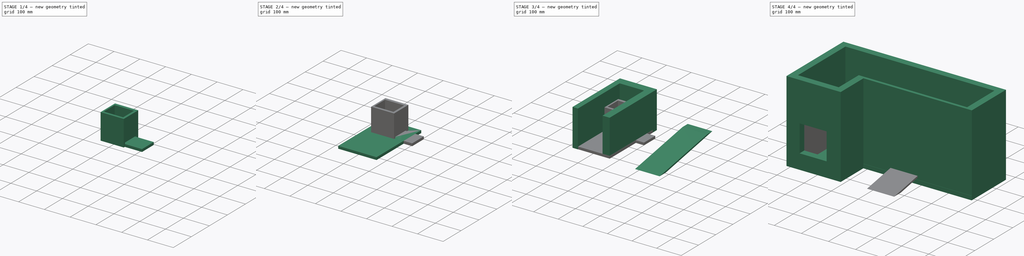
[diagram: build sequence overview — one tinted view per stage of 4, left to right]
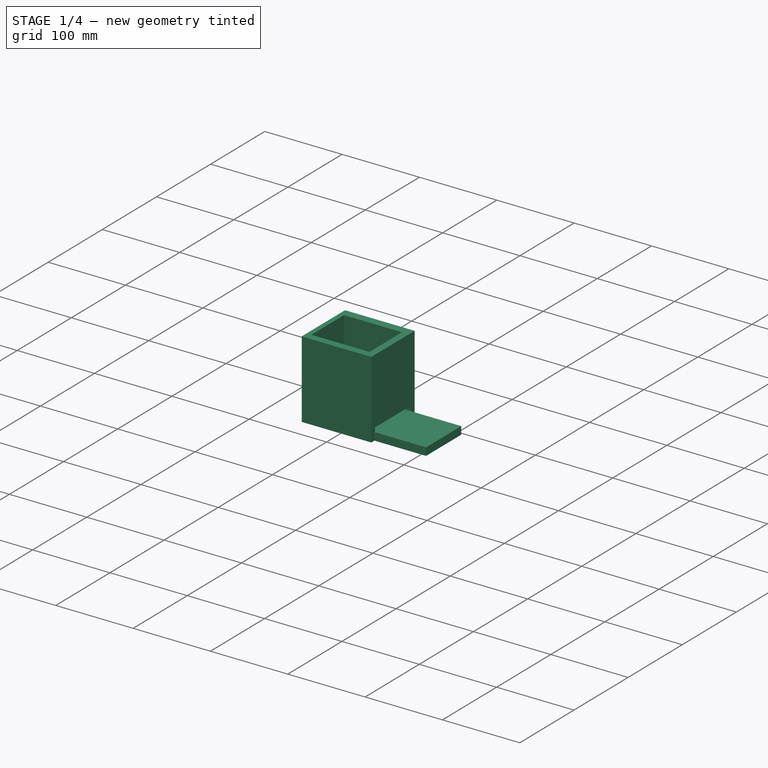
[diagram: stage 1 of 4 — iso view after this stage's code; geometry added in this stage tinted green]
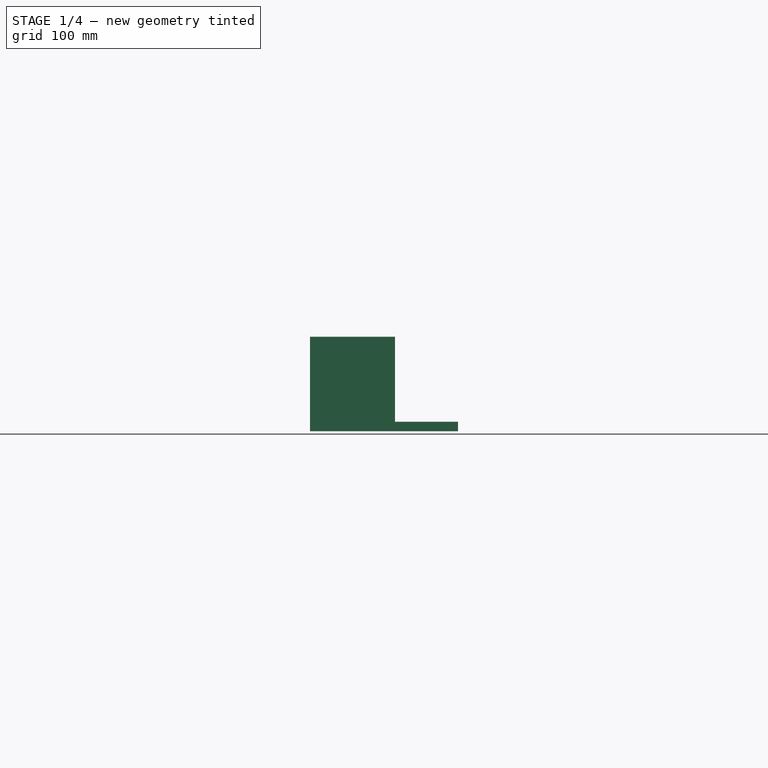
[diagram: stage 1 of 4 — front view after this stage's code; geometry added in this stage tinted green]
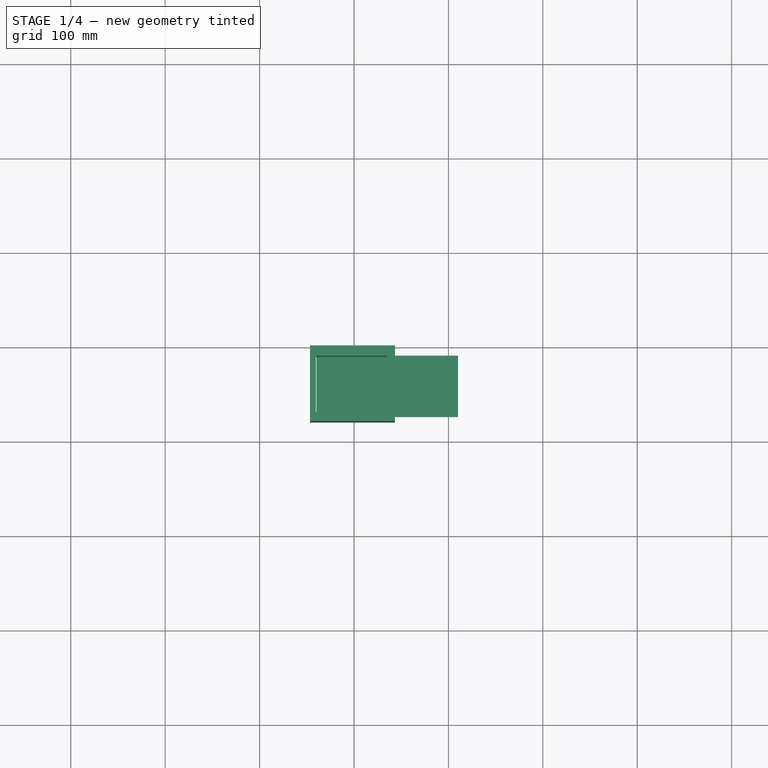
[diagram: stage 1 of 4 — top view after this stage's code; geometry added in this stage tinted green]
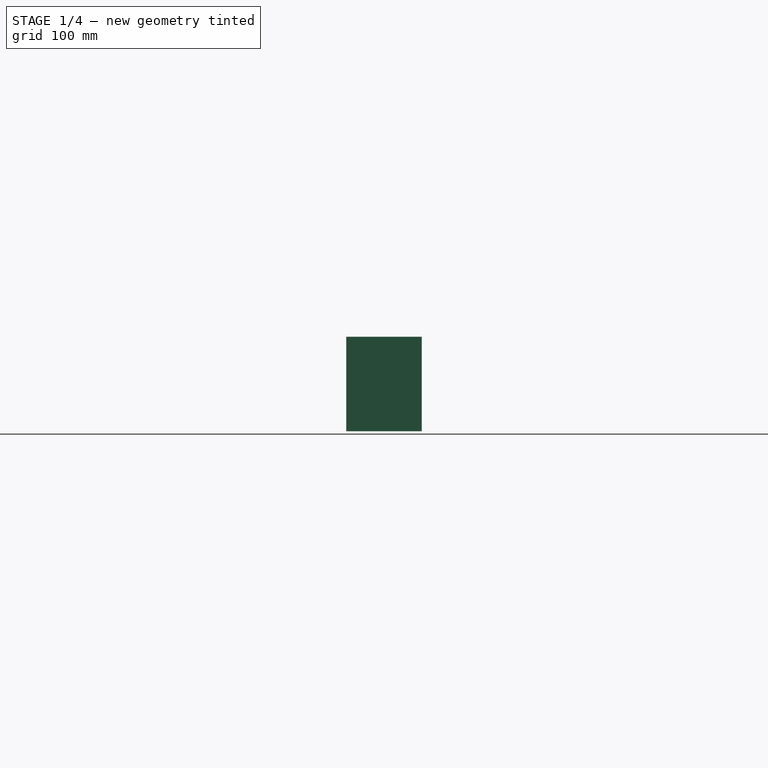
[diagram: stage 1 of 4 — right view after this stage's code; geometry added in this stage tinted green]
FCSTD DOCUMENT  (FreeCAD 0.19R24291 (Git))
Label: Design
License: All rights reserved
LicenseURL: http://en.wikipedia.org/wiki/All_rights_reserved
objects: Sketcher::SketchObject×11, PartDesign::Pad×7, PartDesign::Body×7, PartDesign::Pocket×4
note: 40 computed .brp shape members not serialized (recipe doc carries the construction recipe); baked Part::Feature solids carry a one-line shape summary decoded from their .brp

FEATURE [PartDesign::Body] Body004  label="กันอาหารหล่นลงมา"
  Group = -> [Sketch007,Pad004,Sketch008,Pocket001,Pocket002]
  Origin = -> Origin004
  Placement = pos=(0,0,155) rot=(0,0,1;0rad)
  Tip = -> Pocket002
FEATURE [Sketcher::SketchObject] Sketch009
  FullyConstrained = false
  MapMode = 5
  Support = -> [XY_Plane005]
  sketch-geometry (4):
    g0: LineSegment StartX=-239.835 StartY=91.5187 StartZ=0 EndX=-89.8354 EndY=91.5187 EndZ=0
    g1: LineSegment StartX=-89.8354 StartY=91.5187 StartZ=0 EndX=-89.8354 EndY=26.5187 EndZ=0
    g2: LineSegment StartX=-89.8354 StartY=26.5187 StartZ=0 EndX=-239.835 EndY=26.5187 EndZ=0
    g3: LineSegment StartX=-239.835 StartY=26.5187 StartZ=0 EndX=-239.835 EndY=91.5187 EndZ=0
  constraints (10):
    c: Coincident(g0,g1)
    c: Coincident(g1,g2)
    c: Coincident(g2,g3)
    c: Coincident(g3,g0)
    c: Horizontal(g0)
    c: Horizontal(g2)
    c: Vertical(g1)
    c: Vertical(g3)
    c: DistanceX(g0,g0) = 150
    c: DistanceY(g3,g3) = 65
FEATURE [PartDesign::Pad] Pad005
  Direction = (1,1,1)
  Length = 10
  Length2 = 100
  Profile = -> Sketch009
  Type = 0
FEATURE [PartDesign::Body] Body005  label="ฝาปิด"
  Group = -> [Sketch009,Pad005]
  Origin = -> Origin005
  Placement = pos=(95,1,165) rot=(0,0,1;0rad)
  Tip = -> Pad005
FEATURE [Sketcher::SketchObject] Sketch010
  FullyConstrained = false
  MapMode = 5
  Support = -> [XY_Plane006]
  sketch-geometry (8):
    g0: LineSegment StartX=-246.629 StartY=100.775 StartZ=0 EndX=-156.629 EndY=100.775 EndZ=0
    g1: LineSegment StartX=-156.629 StartY=100.775 StartZ=0 EndX=-156.629 EndY=20.7751 EndZ=0
    g2: LineSegment StartX=-156.629 StartY=20.7751 StartZ=0 EndX=-246.629 EndY=20.7751 EndZ=0
    g3: LineSegment StartX=-246.629 StartY=20.7751 StartZ=0 EndX=-246.629 EndY=100.775 EndZ=0
    g4: LineSegment StartX=-240.432 StartY=89.9827 StartZ=0 EndX=-165.432 EndY=89.9827 EndZ=0
    g5: LineSegment StartX=-165.432 StartY=89.9827 StartZ=0 EndX=-165.432 EndY=29.9827 EndZ=0
    g6: LineSegment StartX=-165.432 StartY=29.9827 StartZ=0 EndX=-240.432 EndY=29.9827 EndZ=0
    g7: LineSegment StartX=-240.432 StartY=29.9827 StartZ=0 EndX=-240.432 EndY=89.9827 EndZ=0
  constraints (20):
    c: Coincident(g0,g1)
    c: Coincident(g1,g2)
    c: Coincident(g2,g3)
    c: Coincident(g3,g0)
    c: Horizontal(g0)
    c: Horizontal(g2)
    c: Vertical(g1)
    c: Vertical(g3)
    c: DistanceX(g0,g0) = 90
    c: DistanceY(g3,g3) = 80
    c: Coincident(g4,g5)
    c: Coincident(g5,g6)
    c: Coincident(g6,g7)
    c: Coincident(g7,g4)
    c: Horizontal(g4)
    c: Horizontal(g6)
    c: Vertical(g5)
    c: Vertical(g7)
    c: DistanceY(g7,g7) = 60
    c: DistanceX(g4,g4) = 75
FEATURE [PartDesign::Pad] Pad006
  Direction = (1,1,1)
  Length = 100
  Length2 = 100
  Profile = -> Sketch010
  Type = 0
FEATURE [Sketcher::SketchObject] Sketch011
  FullyConstrained = false
  MapMode = 5
  Placement = pos=(-156.629,0,0) rot=(0.57735,0.57735,0.57735;2.0944rad)
  Support = -> [Pad006]
  sketch-geometry (4):
    g0: LineSegment StartX=27.6266 StartY=0 StartZ=0 EndX=92.6266 EndY=0 EndZ=0
    g1: LineSegment StartX=92.6266 StartY=0 StartZ=0 EndX=92.6266 EndY=15 EndZ=0
    g2: LineSegment StartX=92.6266 StartY=15 StartZ=0 EndX=27.6266 EndY=15 EndZ=0
    g3: LineSegment StartX=27.6266 StartY=15 StartZ=0 EndX=27.6266 EndY=0 EndZ=0
  constraints (11):
    c: Coincident(g0,g1)
    c: Coincident(g1,g2)
    c: Coincident(g2,g3)
    c: Coincident(g3,g0)
    c: Horizontal(g0)
    c: Horizontal(g2)
    c: Vertical(g1)
    c: Vertical(g3)
    c: PointOnObject(g0,g-1)
    c: DistanceX(g2,g2) = 65
    c: DistanceY(g1,g1) = 15
FEATURE [PartDesign::Pocket] Pocket003
  BaseFeature = -> Pad006
  Length = 87
  Length2 = 100
  Profile = -> Sketch011
  Type = 0
FEATURE [PartDesign::Body] Body006  label="ท่อส่งอาหาร"
  Group = -> [Sketch010,Pad006,Sketch011,Pocket003]
  Origin = -> Origin006
  Placement = pos=(1,0,165) rot=(0,0,1;0rad)
  Tip = -> Pocket003
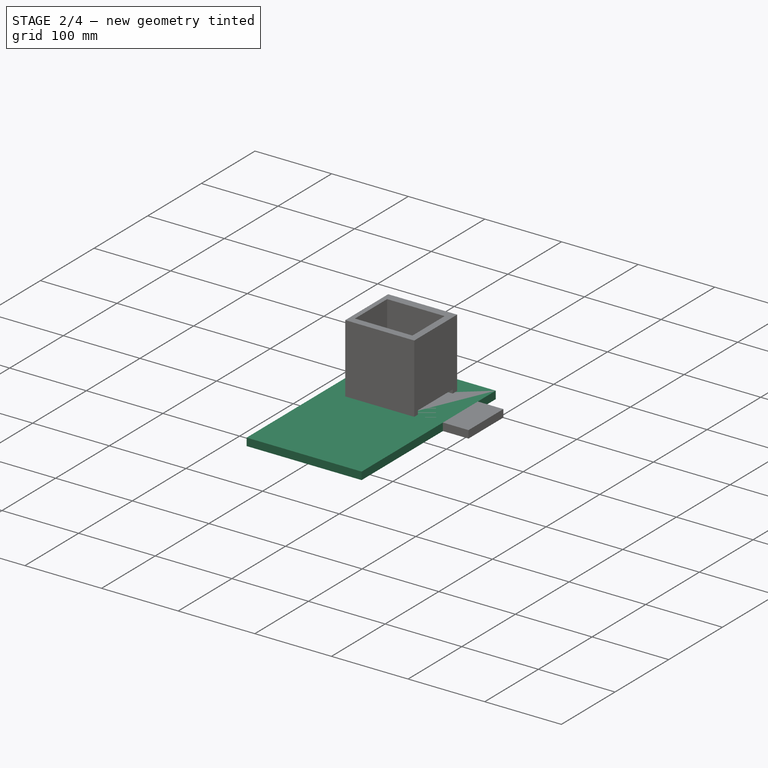
[diagram: stage 2 of 4 — iso view after this stage's code; geometry added in this stage tinted green]
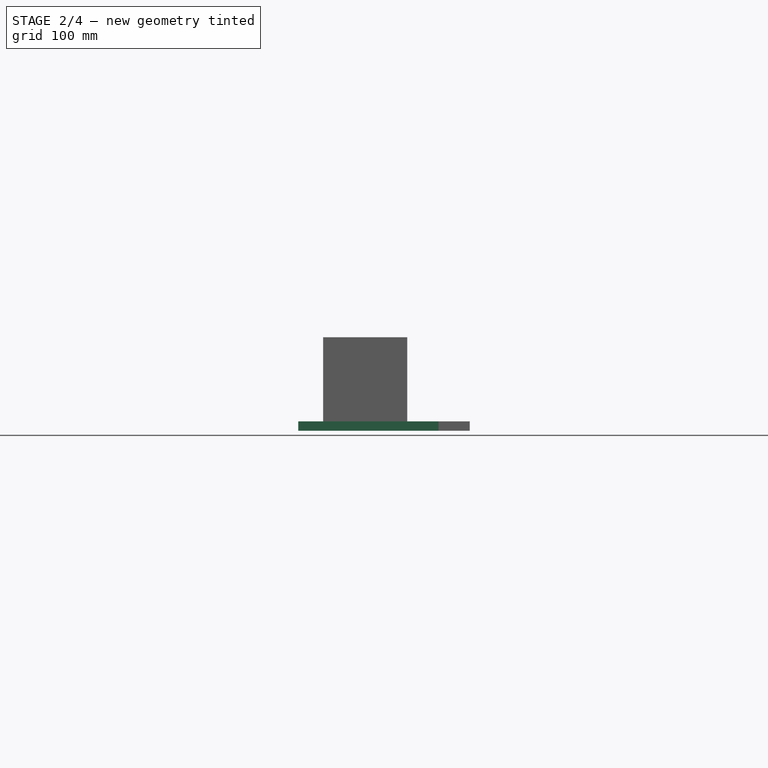
[diagram: stage 2 of 4 — front view after this stage's code; geometry added in this stage tinted green]
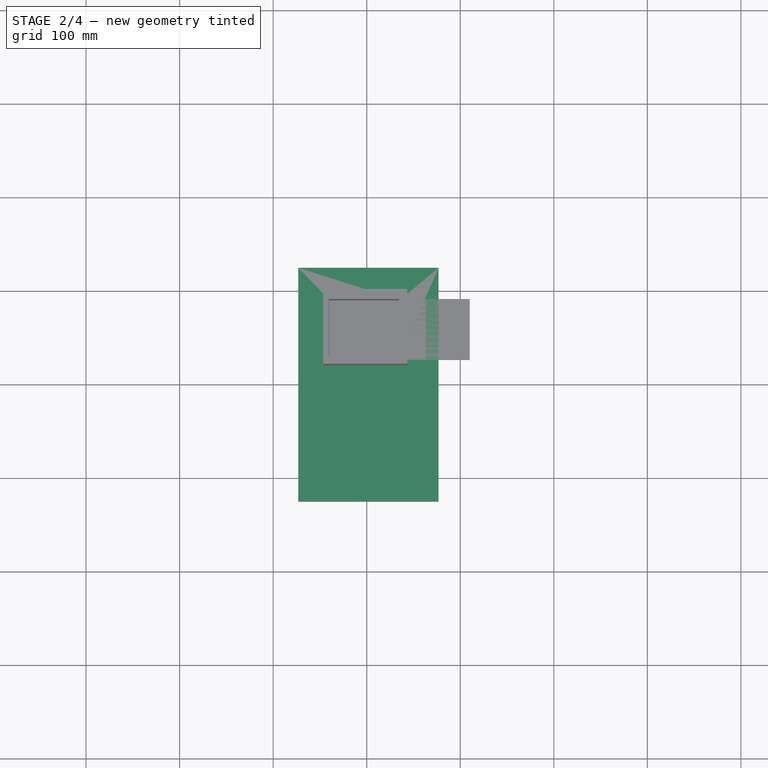
[diagram: stage 2 of 4 — top view after this stage's code; geometry added in this stage tinted green]
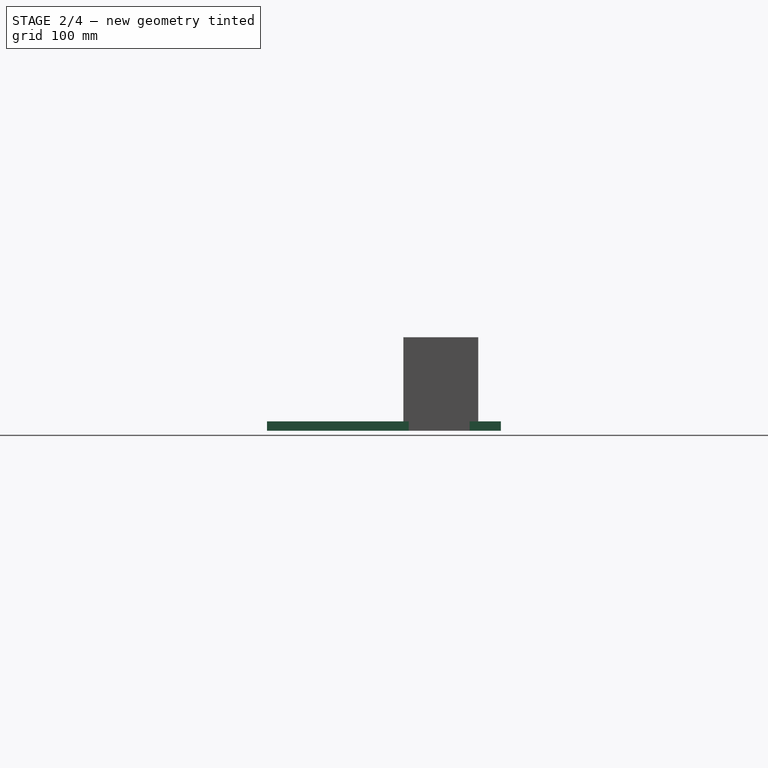
[diagram: stage 2 of 4 — right view after this stage's code; geometry added in this stage tinted green]
FEATURE [PartDesign::Body] Body003  label="ที่กันอาหารหก"
  Group = -> [Sketch006,Pad003]
  Origin = -> Origin003
  Placement = pos=(0,0,5) rot=(0,0,1;0rad)
  Tip = -> Pad003
FEATURE [Sketcher::SketchObject] Sketch007
  FullyConstrained = false
  MapMode = 5
  Support = -> [XY_Plane004]
  sketch-geometry (4):
    g0: LineSegment StartX=-273.221 StartY=125 StartZ=0 EndX=-123.221 EndY=125 EndZ=0
    g1: LineSegment StartX=-123.221 StartY=125 StartZ=0 EndX=-123.221 EndY=-125 EndZ=0
    g2: LineSegment StartX=-123.221 StartY=-125 StartZ=0 EndX=-273.221 EndY=-125 EndZ=0
    g3: LineSegment StartX=-273.221 StartY=-125 StartZ=0 EndX=-273.221 EndY=125 EndZ=0
  constraints (10):
    c: Horizontal(g0)
    c: Coincident(g0,g1)
    c: Vertical(g1)
    c: Coincident(g1,g2)
    c: Horizontal(g2)
    c: Coincident(g2,g3)
    c: Coincident(g3,g0)
    c: DistanceX(g0,g0) = 150
    c: DistanceY(g3,g3) = 250
    c: Symmetric(g0,g2,g-1)
FEATURE [PartDesign::Pad] Pad004
  Direction = (1,1,1)
  Length = 10
  Length2 = 100
  Profile = -> Sketch007
  Type = 0
FEATURE [Sketcher::SketchObject] Sketch008
  FullyConstrained = false
  MapMode = 5
  Support = -> [XY_Plane004]
  sketch-geometry (4):
    g0: LineSegment StartX=-164.734 StartY=90.3622 StartZ=0 EndX=-239.734 EndY=90.3622 EndZ=0
    g1: LineSegment StartX=-239.734 StartY=90.3622 StartZ=0 EndX=-239.734 EndY=30.3622 EndZ=0
    g2: LineSegment StartX=-239.734 StartY=30.3622 StartZ=0 EndX=-164.734 EndY=30.3622 EndZ=0
    g3: LineSegment StartX=-164.734 StartY=30.3622 StartZ=0 EndX=-164.734 EndY=90.3622 EndZ=0
  constraints (10):
    c: Coincident(g0,g1)
    c: Coincident(g1,g2)
    c: Coincident(g2,g3)
    c: Coincident(g3,g0)
    c: Horizontal(g0)
    c: Horizontal(g2)
    c: Vertical(g1)
    c: Vertical(g3)
    c: DistanceX(g0,g0) = 75
    c: DistanceY(g1,g1) = 60
FEATURE [PartDesign::Pocket] Pocket001
  BaseFeature = -> Pad004
  Length = 20
  Length2 = 100
  Profile = -> Sketch008
  Type = 0
FEATURE [PartDesign::Pocket] Pocket002
  BaseFeature = -> Pocket001
  Length = 20
  Length2 = 100
  Midplane = true
  Profile = -> Sketch008
  Type = 0
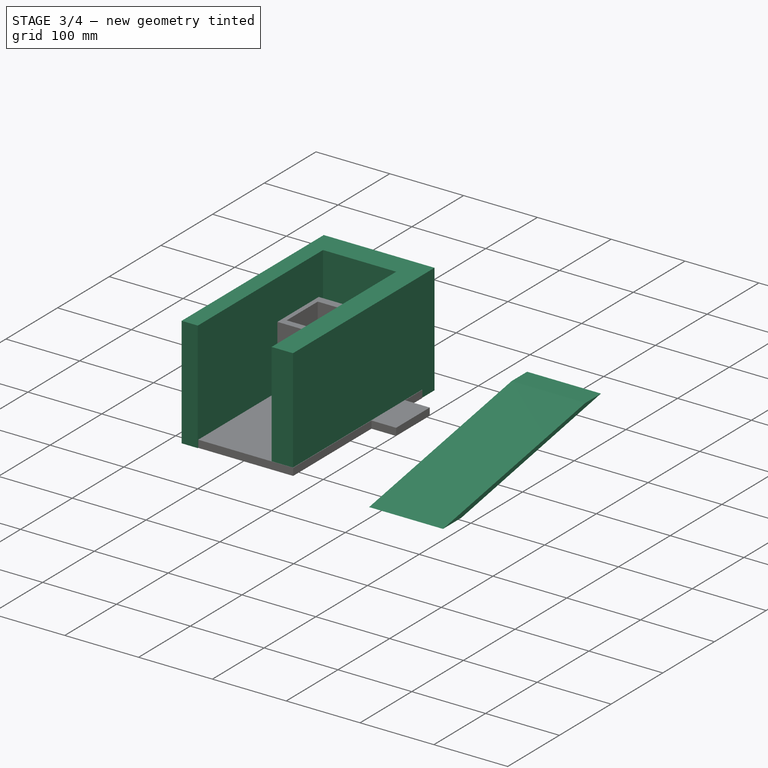
[diagram: stage 3 of 4 — iso view after this stage's code; geometry added in this stage tinted green]
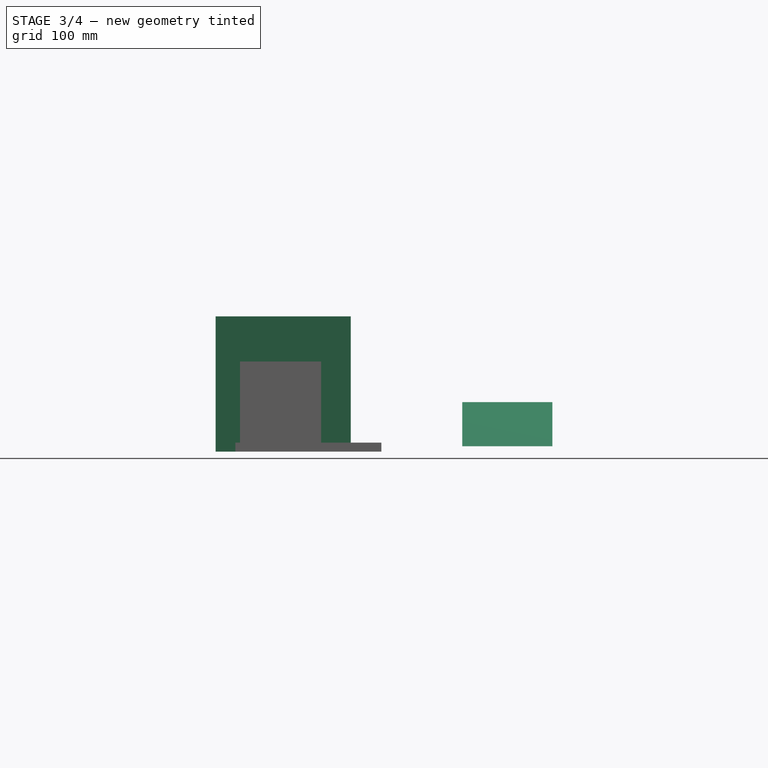
[diagram: stage 3 of 4 — front view after this stage's code; geometry added in this stage tinted green]
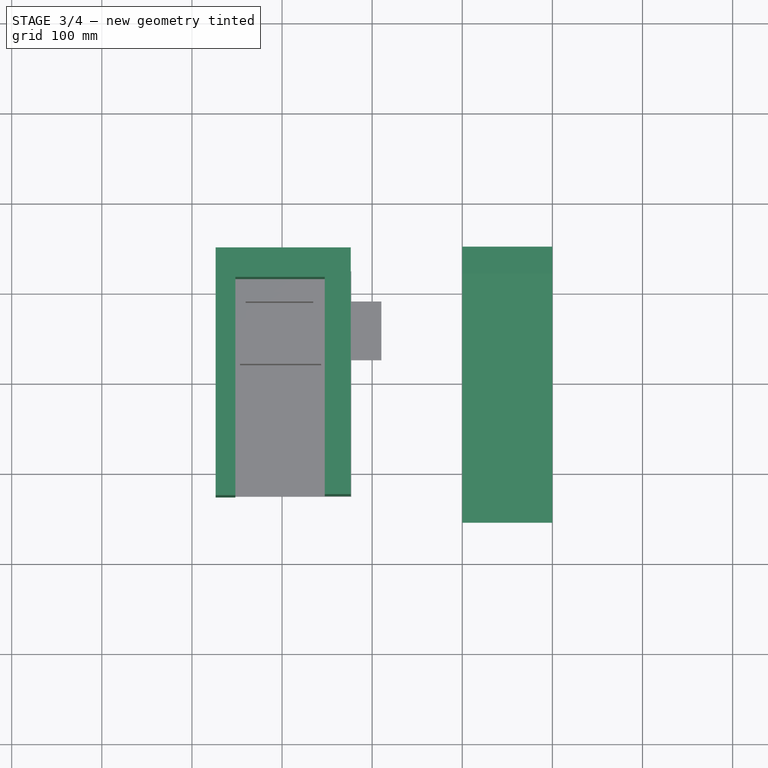
[diagram: stage 3 of 4 — top view after this stage's code; geometry added in this stage tinted green]
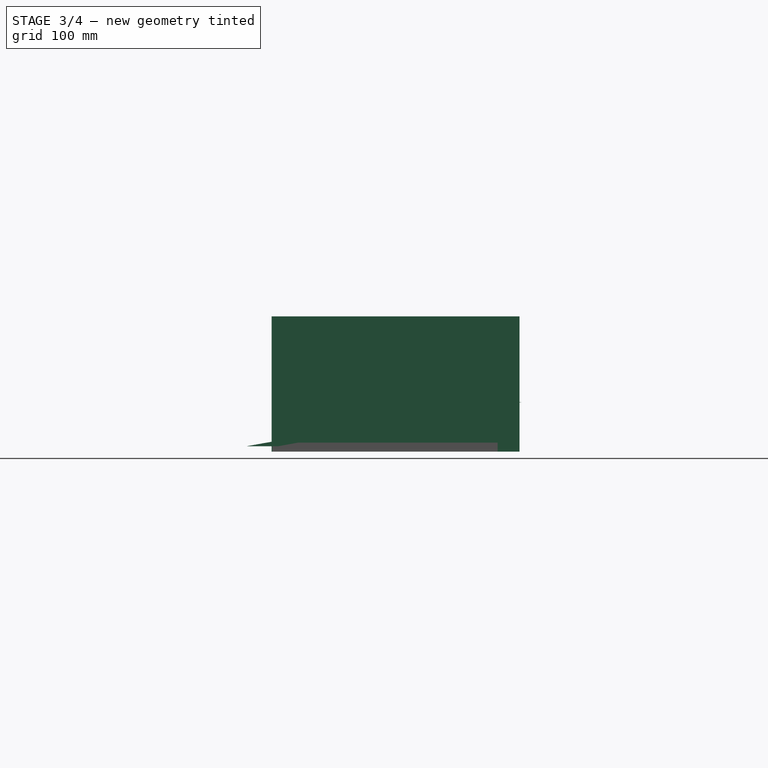
[diagram: stage 3 of 4 — right view after this stage's code; geometry added in this stage tinted green]
FEATURE [PartDesign::Body] Body001  label="ขอบ"
  Group = -> [Sketch002,Pad001,Sketch003,Sketch004,Pocket]
  Origin = -> Origin001
  Tip = -> Pocket
FEATURE [Sketcher::SketchObject] Sketch005
  FullyConstrained = false
  MapMode = 5
  Placement = pos=(0,0,0) rot=(0.57735,0.57735,0.57735;2.0944rad)
  Support = -> [YZ_Plane002]
  sketch-geometry (4):
    g0: LineSegment StartX=121.707 StartY=54.8987 StartZ=0 EndX=-153.974 EndY=5.90797 EndZ=0
    g1: LineSegment StartX=-153.974 StartY=5.90797 StartZ=0 EndX=-118.712 EndY=5.90797 EndZ=0
    g2: LineSegment StartX=-118.712 StartY=5.90797 StartZ=0 EndX=151.707 EndY=54.8987 EndZ=0
    g3: LineSegment StartX=151.707 StartY=54.8987 StartZ=0 EndX=121.707 EndY=54.8987 EndZ=0
  constraints (8):
    c: Coincident(g0,g1)
    c: Horizontal(g1)
    c: Coincident(g1,g2)
    c: Coincident(g2,g3)
    c: Coincident(g3,g0)
    c: Horizontal(g3)
    c: Distance(g0) = 280
    c: DistanceX(g3,g3) = 30
FEATURE [PartDesign::Pad] Pad002
  Direction = (1,1,1)
  Length = 100
  Length2 = 100
  Placement = pos=(0,0,0) rot=(0.57735,0.57735,0.57735;2.0944rad)
  Profile = -> Sketch005
  Type = 0
FEATURE [PartDesign::Body] Body002  label="ที่เทอาหาร"
  Group = -> [Sketch005,Pad002]
  Origin = -> Origin002
  Placement = pos=(-252,-6,50) rot=(0,0,1;0rad)
  Tip = -> Pad002
FEATURE [Sketcher::SketchObject] Sketch006
  FullyConstrained = false
  MapMode = 5
  Support = -> [XY_Plane003]
  sketch-geometry (8):
    g0: LineSegment StartX=-251.819 StartY=-125.789 StartZ=0 EndX=-251.819 EndY=116.437 EndZ=0
    g1: LineSegment StartX=-251.819 StartY=116.437 StartZ=0 EndX=-152.624 EndY=116.437 EndZ=0
    g2: LineSegment StartX=-152.624 StartY=116.437 StartZ=0 EndX=-152.624 EndY=-124.654 EndZ=0
    g3: LineSegment StartX=-152.624 StartY=-124.654 StartZ=0 EndX=-123.717 EndY=-124.654 EndZ=0
    g4: LineSegment StartX=-123.717 StartY=-124.654 StartZ=0 EndX=-123.717 EndY=149.211 EndZ=0
    g5: LineSegment StartX=-123.717 StartY=149.211 StartZ=0 EndX=-273.717 EndY=149.211 EndZ=0
    g6: LineSegment StartX=-273.717 StartY=149.211 StartZ=0 EndX=-273.717 EndY=-125.789 EndZ=0
    g7: LineSegment StartX=-273.717 StartY=-125.789 StartZ=0 EndX=-251.819 EndY=-125.789 EndZ=0
  constraints (18):
    c: Vertical(g0)
    c: Coincident(g0,g1)
    c: Horizontal(g1)
    c: Coincident(g1,g2)
    c: Vertical(g2)
    c: Coincident(g2,g3)
    c: Horizontal(g3)
    c: Coincident(g3,g4)
    c: Vertical(g4)
    c: Coincident(g4,g5)
    c: Horizontal(g5)
    c: Coincident(g5,g6)
    c: Vertical(g6)
    c: Coincident(g6,g7)
    c: Coincident(g7,g0)
    c: Horizontal(g7)
    c: DistanceX(g5,g5) = 150
    c: DistanceY(g6,g6) = 275
FEATURE [PartDesign::Pad] Pad003
  Direction = (1,1,1)
  Length = 150
  Length2 = 100
  Profile = -> Sketch006
  Type = 0
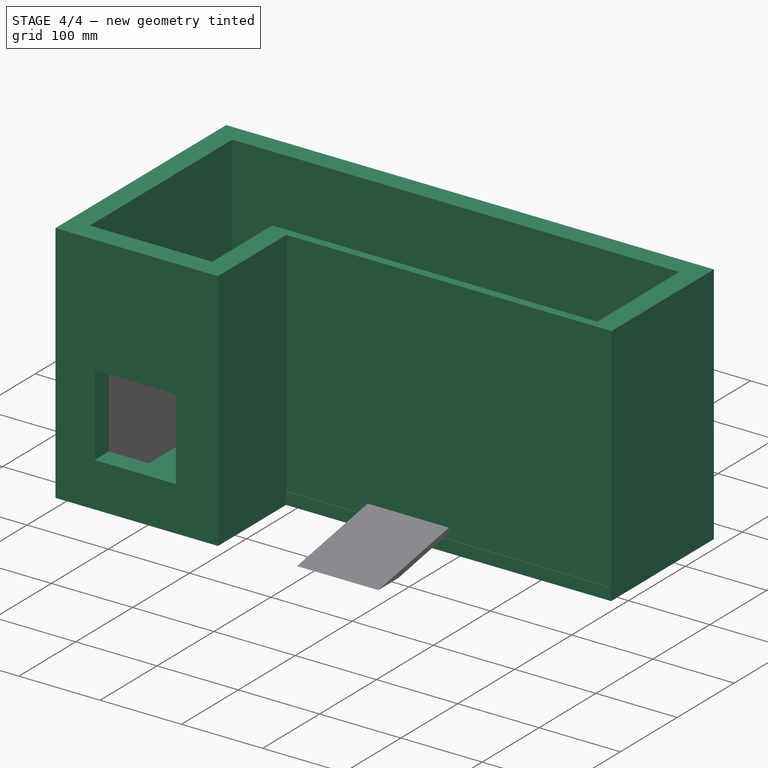
[diagram: stage 4 of 4 — iso view after this stage's code; geometry added in this stage tinted green]
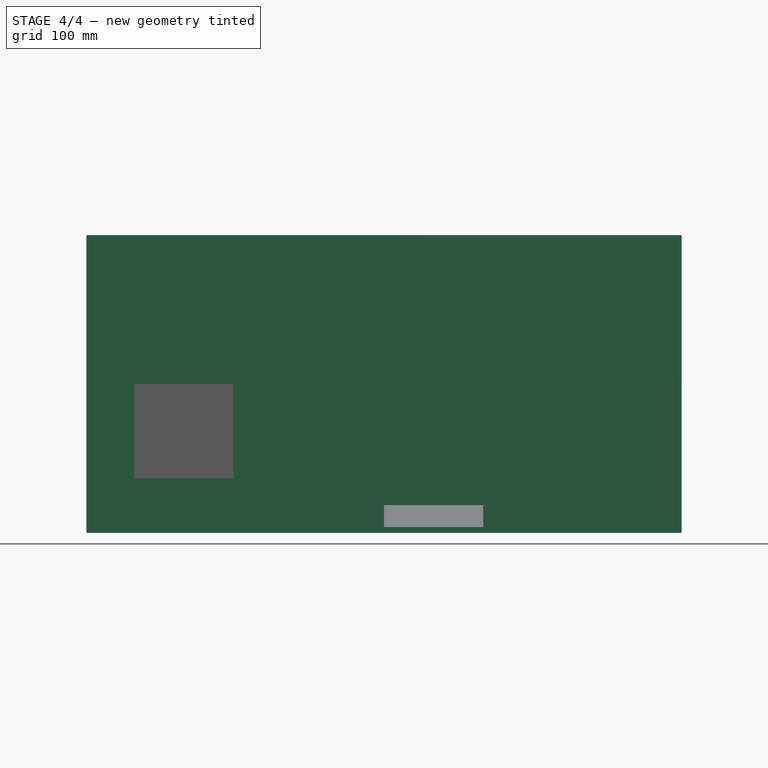
[diagram: stage 4 of 4 — front view after this stage's code; geometry added in this stage tinted green]
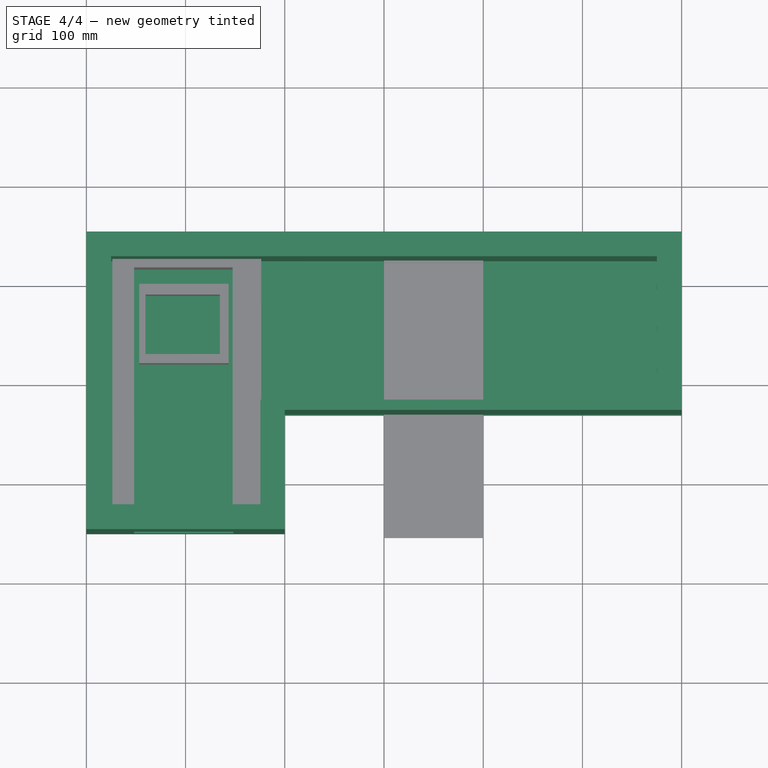
[diagram: stage 4 of 4 — top view after this stage's code; geometry added in this stage tinted green]
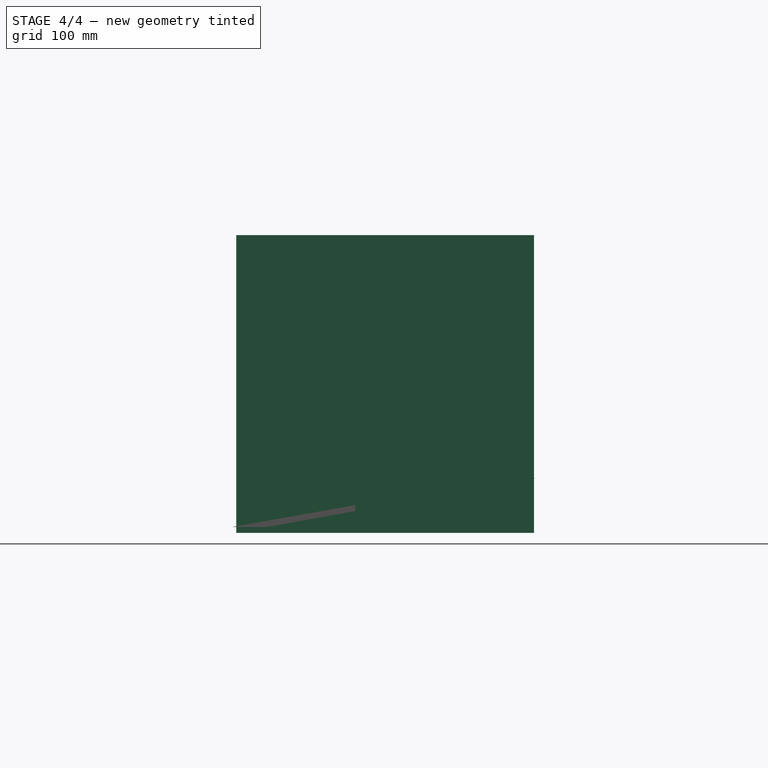
[diagram: stage 4 of 4 — right view after this stage's code; geometry added in this stage tinted green]
FEATURE [Sketcher::SketchObject] Sketch
  FullyConstrained = false
  MapMode = 5
  Support = -> [XY_Plane]
  sketch-geometry (6):
    g0: LineSegment StartX=300 StartY=150 StartZ=0 EndX=300 EndY=-30.489 EndZ=0
    g1: LineSegment StartX=300 StartY=-30.489 StartZ=0 EndX=-100 EndY=-30.489 EndZ=0
    g2: LineSegment StartX=-100 StartY=-30.489 StartZ=0 EndX=-100 EndY=-150 EndZ=0
    g3: LineSegment StartX=-100 StartY=-150 StartZ=0 EndX=-300 EndY=-150 EndZ=0
    g4: LineSegment StartX=-300 StartY=-150 StartZ=0 EndX=-300 EndY=150 EndZ=0
    g5: LineSegment StartX=-300 StartY=150 StartZ=0 EndX=300 EndY=150 EndZ=0
  constraints (15):
    c: Vertical(g0)
    c: Coincident(g0,g1)
    c: Horizontal(g1)
    c: Coincident(g1,g2)
    c: Vertical(g2)
    c: Coincident(g2,g3)
    c: Horizontal(g3)
    c: Coincident(g3,g4)
    c: Coincident(g4,g5)
    c: Coincident(g5,g0)
    c: DistanceX(g5,g5) = 600
    c: DistanceX(g1,g1) = 400
    c: DistanceY(g4,g4) = 300
    c: Symmetric(g4,g0,g-2)
    c: Symmetric(g4,g3,g-1)
FEATURE [PartDesign::Pad] Pad
  Direction = (1,1,1)
  Length = 15
  Length2 = 100
  Profile = -> Sketch
  Type = 0
FEATURE [PartDesign::Body] Body  label="ฐาน"
  Group = -> [Sketch,Pad]
  Origin = -> Origin
  Tip = -> Pad
FEATURE [Sketcher::SketchObject] Sketch002
  FullyConstrained = false
  MapMode = 5
  Support = -> [XY_Plane001]
  sketch-geometry (12):
    g0: LineSegment StartX=-300 StartY=150 StartZ=0 EndX=300 EndY=150 EndZ=0
    g1: LineSegment StartX=300 StartY=150 StartZ=0 EndX=300 EndY=-29.812 EndZ=0
    g2: LineSegment StartX=300 StartY=-29.812 StartZ=0 EndX=-100 EndY=-29.812 EndZ=0
    g3: LineSegment StartX=-100 StartY=-29.812 StartZ=0 EndX=-100 EndY=-150 EndZ=0
    g4: LineSegment StartX=-100 StartY=-150 StartZ=0 EndX=-300 EndY=-150 EndZ=0
    g5: LineSegment StartX=-300 StartY=-150 StartZ=0 EndX=-300 EndY=150 EndZ=0
    g6: LineSegment StartX=-275 StartY=125 StartZ=0 EndX=275 EndY=125 EndZ=0
    g7: LineSegment StartX=275 StartY=125 StartZ=0 EndX=275.432 EndY=-19.5 EndZ=0
    g8: LineSegment StartX=275.432 StartY=-19.5 StartZ=0 EndX=-124.568 EndY=-19.5 EndZ=0
    g9: LineSegment StartX=-124.568 StartY=-19.5 StartZ=0 EndX=-124.568 EndY=-125 EndZ=0
    g10: LineSegment StartX=-124.568 StartY=-125 StartZ=0 EndX=-275 EndY=-125 EndZ=0
    g11: LineSegment StartX=-275 StartY=-125 StartZ=0 EndX=-275 EndY=125 EndZ=0
  constraints (30):
    c: Coincident(g0,g1)
    c: Vertical(g1)
    c: Coincident(g1,g2)
    c: Horizontal(g2)
    c: Coincident(g2,g3)
    c: Vertical(g3)
    c: Coincident(g3,g4)
    c: Horizontal(g4)
    c: Coincident(g4,g5)
    c: Coincident(g5,g0)
    c: DistanceY(g5,g5) = 300
    c: DistanceX(g0,g0) = 600
    c: DistanceX(g2,g2) = 400
    c: Symmetric(g0,g0,g-2)
    c: Symmetric(g0,g4,g-1)
    c: Coincident(g6,g7)
    c: Coincident(g7,g8)
    c: Horizontal(g8)
    c: Coincident(g8,g9)
    c: Vertical(g9)
    c: Coincident(g9,g10)
    c: Horizontal(g10)
    c: Coincident(g10,g11)
    c: Coincident(g11,g6)
    c: DistanceX(g6,g6) = 550
    c: DistanceX(g8,g8) = 400
    c: DistanceY(g11,g11) = 250
    c: DistanceY(g9,g9) = 105.5
    c: Symmetric(g6,g6,g-2)
    c: Symmetric(g6,g10,g-1)
FEATURE [PartDesign::Pad] Pad001
  Direction = (1,1,1)
  Length = 300
  Length2 = 100
  Profile = -> Sketch002
  Type = 0
FEATURE [Sketcher::SketchObject] Sketch003
  FullyConstrained = true
  MapMode = 5
  Placement = pos=(0,-150,0) rot=(1,0,0;1.5708rad)
  Support = -> [Pad001]
FEATURE [Sketcher::SketchObject] Sketch004
  FullyConstrained = false
  MapMode = 5
  Placement = pos=(0,-150,0) rot=(1,0,0;1.5708rad)
  Support = -> [Pad001]
  sketch-geometry (4):
    g0: LineSegment StartX=-251.802 StartY=154.985 StartZ=0 EndX=-151.802 EndY=154.985 EndZ=0
    g1: LineSegment StartX=-151.802 StartY=154.985 StartZ=0 EndX=-151.802 EndY=54.9855 EndZ=0
    g2: LineSegment StartX=-151.802 StartY=54.9855 StartZ=0 EndX=-251.802 EndY=54.9855 EndZ=0
    g3: LineSegment StartX=-251.802 StartY=54.9855 StartZ=0 EndX=-251.802 EndY=154.985 EndZ=0
  constraints (10):
    c: Coincident(g0,g1)
    c: Coincident(g1,g2)
    c: Coincident(g2,g3)
    c: Coincident(g3,g0)
    c: Horizontal(g0)
    c: Horizontal(g2)
    c: Vertical(g1)
    c: Vertical(g3)
    c: DistanceX(g0,g0) = 100
    c: DistanceY(g1,g1) = 100
FEATURE [PartDesign::Pocket] Pocket
  BaseFeature = -> Pad001
  Length = 50
  Length2 = 100
  Profile = -> Sketch004
  Type = 0
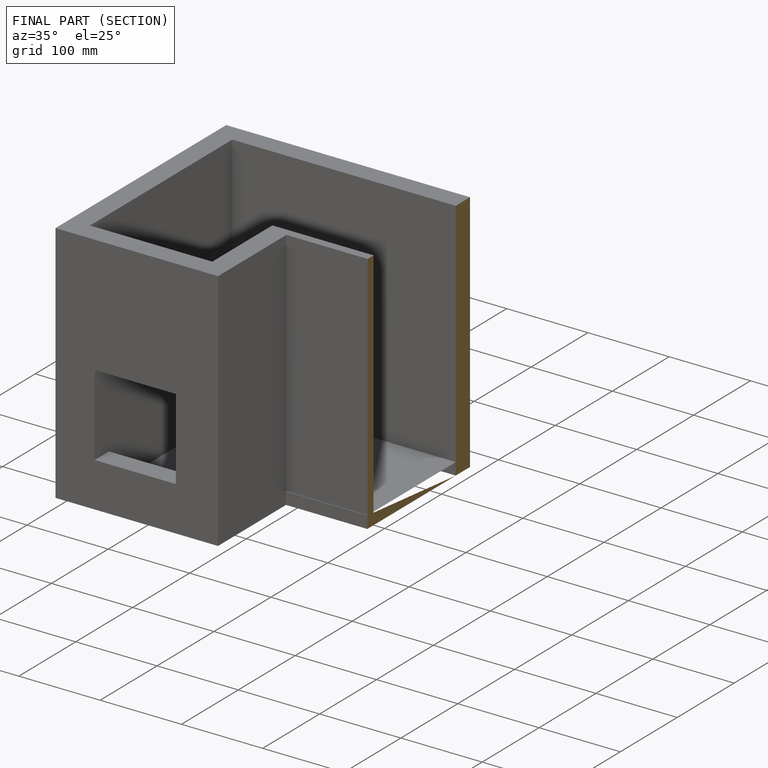
[diagram: finished part — half-section view (interior)]
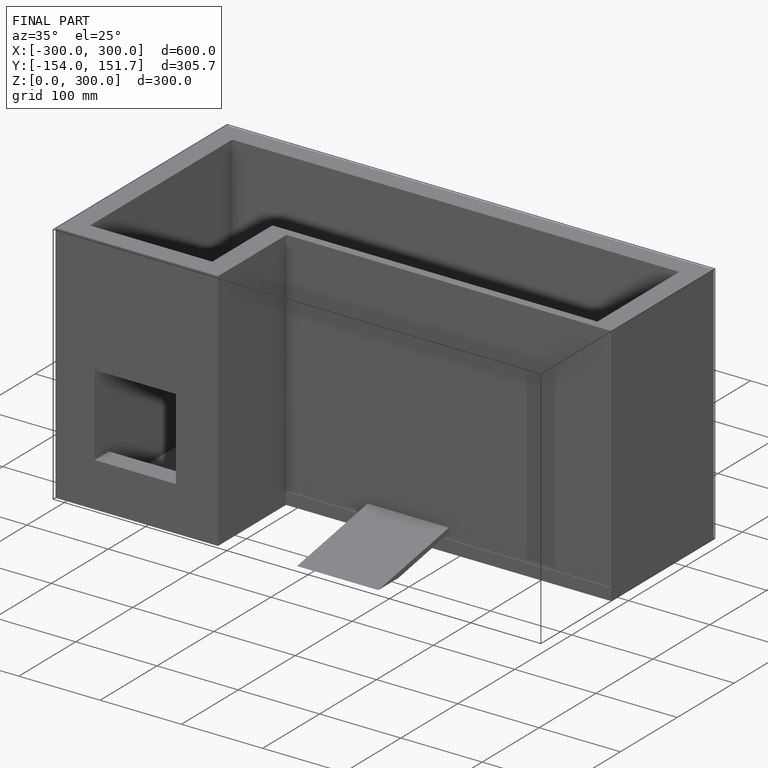
[diagram: finished part — iso view with bounding-box wireframe]
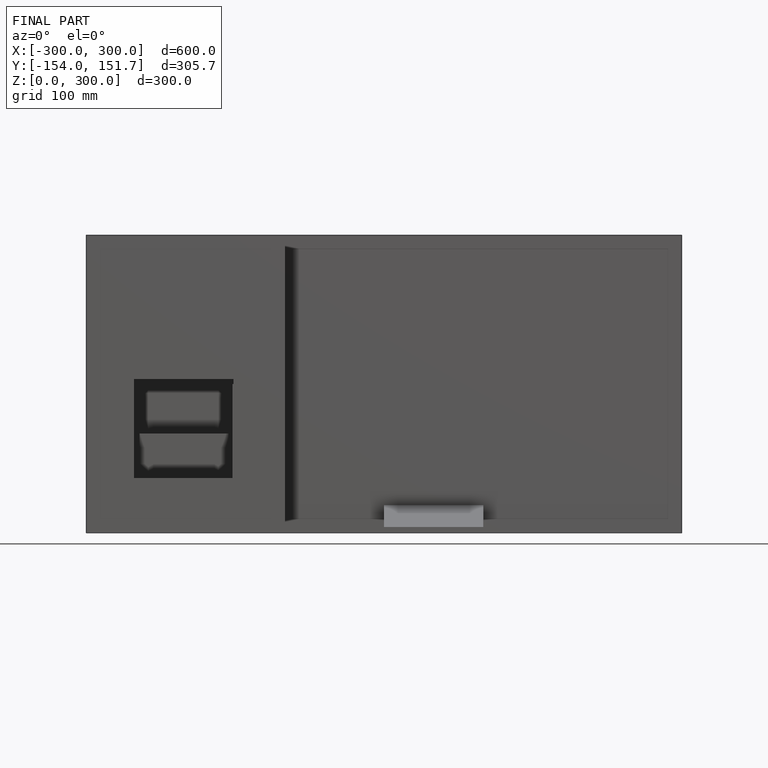
[diagram: finished part — front view with bounding-box wireframe]
